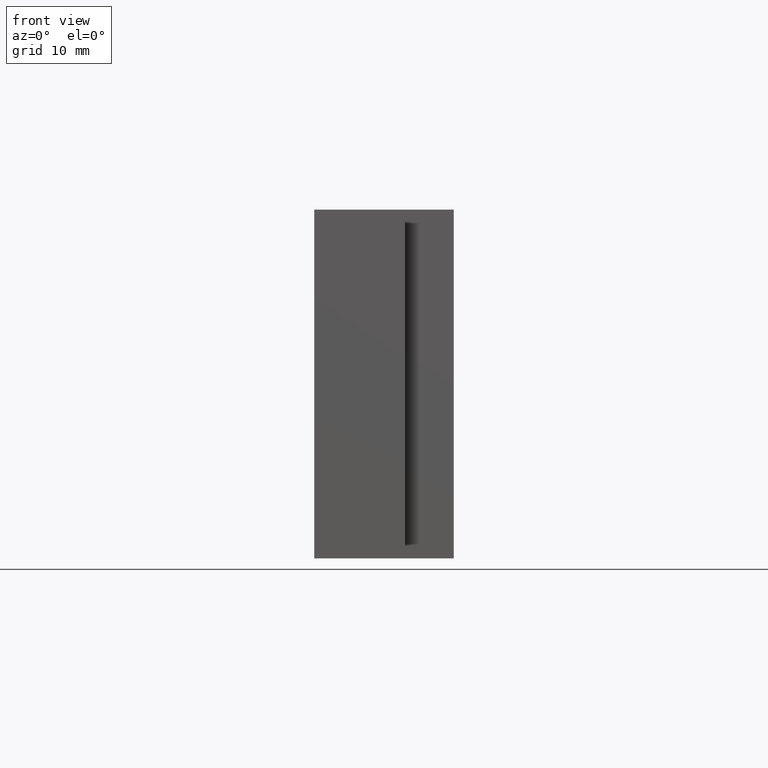
[diagram: clean part render]
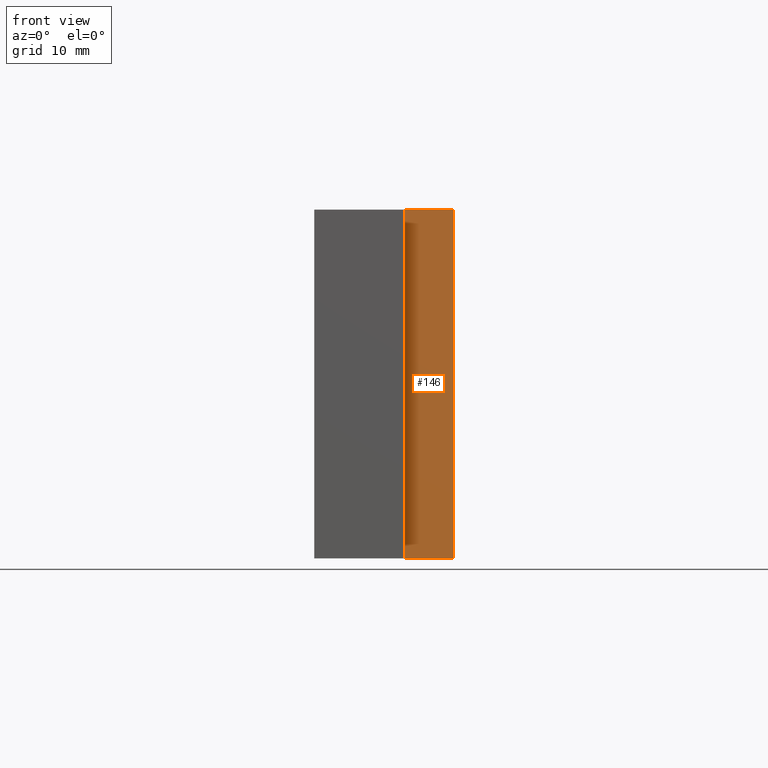
[diagram: same view with one face highlighted and labeled with its STEP entity id]
A machine part, front view. The second image highlights one B-rep face of the part: STEP entity #146.
In plain terms, the highlighted planar face has unit normal (0, -1, 0).
Its self-contained STEP definition (entity closure, byte-faithful):
#20=FACE_OUTER_BOUND('',#28,.T.);
#28=EDGE_LOOP('',(#116,#117,#118,#119));
#37=LINE('',#227,#55);
#44=LINE('',#241,#62);
#45=LINE('',#244,#63);
#46=LINE('',#245,#64);
#55=VECTOR('',#187,10.);
#62=VECTOR('',#200,10.);
#63=VECTOR('',#203,10.);
#64=VECTOR('',#204,10.);
#69=VERTEX_POINT('',#217);
#73=VERTEX_POINT('',#225);
#77=VERTEX_POINT('',#239);
#78=VERTEX_POINT('',#243);
#85=EDGE_CURVE('',#69,#73,#37,.T.);
#92=EDGE_CURVE('',#73,#77,#44,.T.);
#93=EDGE_CURVE('',#77,#78,#45,.T.);
#94=EDGE_CURVE('',#69,#78,#46,.T.);
#116=ORIENTED_EDGE('',*,*,#93,.T.);
#117=ORIENTED_EDGE('',*,*,#94,.F.);
#118=ORIENTED_EDGE('',*,*,#85,.T.);
#119=ORIENTED_EDGE('',*,*,#92,.T.);
#138=PLANE('',#174);
#146=ADVANCED_FACE('',(#20),#138,.T.);
#174=AXIS2_PLACEMENT_3D('',#242,#201,#202);
#187=DIRECTION('',(1.,0.,0.));
#200=DIRECTION('',(0.,0.,1.));
#201=DIRECTION('center_axis',(0.,-1.,0.));
#202=DIRECTION('ref_axis',(0.,0.,-1.));
#203=DIRECTION('',(-1.,0.,0.));
#204=DIRECTION('',(0.,0.,1.));
#217=CARTESIAN_POINT('',(3.00000000000004,-42.,-25.));
#225=CARTESIAN_POINT('',(10.,-42.,-25.));
#227=CARTESIAN_POINT('',(3.00000000000004,-42.,-25.));
#239=CARTESIAN_POINT('',(10.,-42.,25.));
#241=CARTESIAN_POINT('',(10.,-42.,0.));
#242=CARTESIAN_POINT('Origin',(10.,-42.,0.));
#243=CARTESIAN_POINT('',(3.00000000000004,-42.,25.));
#244=CARTESIAN_POINT('',(3.00000000000004,-42.,25.));
#245=CARTESIAN_POINT('',(3.00000000000004,-42.,0.));